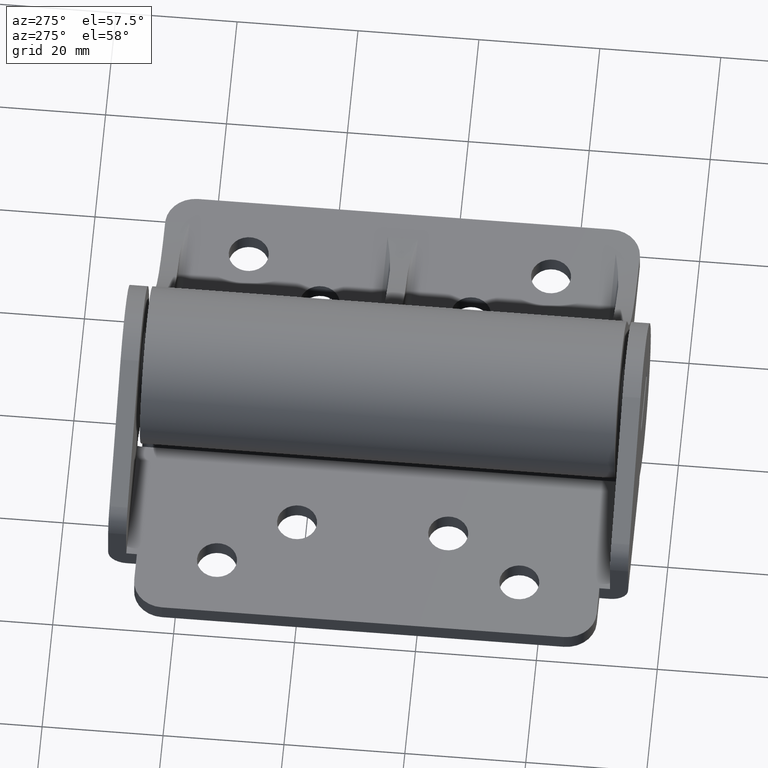
[diagram: clean part render]
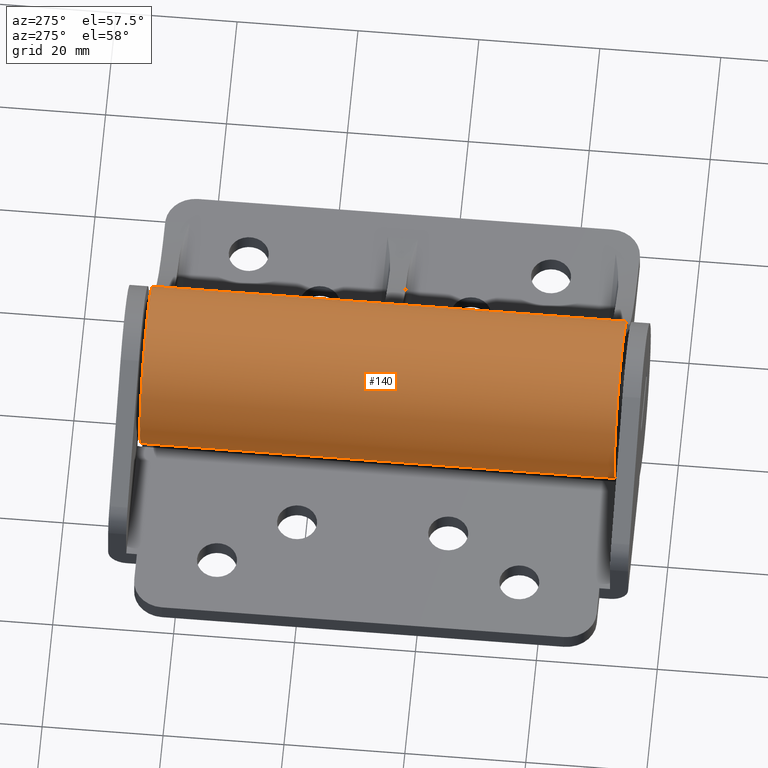
[diagram: same view with one face highlighted and labeled with its STEP entity id]
A machine part, auxiliary view. The second image highlights one B-rep face of the part: STEP entity #140.
In plain terms, the highlighted cylindrical surface (partial cylindrical patch) has radius 13 mm, axis along (0, 1, 0).
Its self-contained STEP definition (entity closure, byte-faithful):
#91 = LINE ( 'NONE', #2711, #1553 ) ;
#140 = ADVANCED_FACE ( 'NONE', ( #2874 ), #472, .T. ) ;
#261 = CARTESIAN_POINT ( 'NONE',  ( 12.08556750290151900, -4.789473680145959200, 82.25000000000000000 ) ) ;
#341 = VERTEX_POINT ( 'NONE', #1724 ) ;
#369 = DIRECTION ( 'NONE',  ( 0.0000000000000000000, 0.0000000000000000000, 1.000000000000000000 ) ) ;
#472 = CYLINDRICAL_SURFACE ( 'NONE', #1137, 13.00000000000000000 ) ;
#489 = ORIENTED_EDGE ( 'NONE', *, *, #1870, .F. ) ;
#521 = EDGE_CURVE ( 'NONE', #3682, #341, #3166, .T. ) ;
#557 = CARTESIAN_POINT ( 'NONE',  ( -8.500000000000000000, 9.836157786453000500, 3.750000000000000000 ) ) ;
#586 = CIRCLE ( 'NONE', #3770, 13.00000000000000000 ) ;
#622 = ORIENTED_EDGE ( 'NONE', *, *, #1363, .T. ) ;
#653 = VERTEX_POINT ( 'NONE', #557 ) ;
#920 = ORIENTED_EDGE ( 'NONE', *, *, #1207, .F. ) ;
#1123 = DIRECTION ( 'NONE',  ( 0.0000000000000000000, 0.0000000000000000000, 1.000000000000000000 ) ) ;
#1137 = AXIS2_PLACEMENT_3D ( 'NONE', #3712, #369, #2310 ) ;
#1207 = EDGE_CURVE ( 'NONE', #653, #341, #2907, .T. ) ;
#1227 = DIRECTION ( 'NONE',  ( -0.0000000000000000000, -0.0000000000000000000, -1.000000000000000000 ) ) ;
#1363 = EDGE_CURVE ( 'NONE', #3273, #3682, #91, .T. ) ;
#1431 = CARTESIAN_POINT ( 'NONE',  ( -8.500000000000000000, 9.836157786453000500, -917.7500000000000000 ) ) ;
#1553 = VECTOR ( 'NONE', #2399, 1000.000000000000000 ) ;
#1724 = CARTESIAN_POINT ( 'NONE',  ( -8.500000000000000000, 9.836157786453000500, 82.25000000000000000 ) ) ;
#1870 = EDGE_CURVE ( 'NONE', #3273, #653, #586, .T. ) ;
#1978 = EDGE_LOOP ( 'NONE', ( #3181, #920, #489, #622 ) ) ;
#2089 = VECTOR ( 'NONE', #1123, 1000.000000000000000 ) ;
#2094 = AXIS2_PLACEMENT_3D ( 'NONE', #3299, #1227, #3737 ) ;
#2310 = DIRECTION ( 'NONE',  ( 1.000000000000000000, 0.0000000000000000000, 0.0000000000000000000 ) ) ;
#2399 = DIRECTION ( 'NONE',  ( 0.0000000000000000000, 0.0000000000000000000, 1.000000000000000000 ) ) ;
#2501 = CARTESIAN_POINT ( 'NONE',  ( 0.0000000000000000000, 0.0000000000000000000, 3.750000000000000000 ) ) ;
#2516 = DIRECTION ( 'NONE',  ( -0.0000000000000000000, -0.0000000000000000000, -1.000000000000000000 ) ) ;
#2528 = DIRECTION ( 'NONE',  ( 1.000000000000000000, 0.0000000000000000000, 0.0000000000000000000 ) ) ;
#2711 = CARTESIAN_POINT ( 'NONE',  ( 12.08556750290151900, -4.789473680145959200, -917.7500000000000000 ) ) ;
#2874 = FACE_OUTER_BOUND ( 'NONE', #1978, .T. ) ;
#2907 = LINE ( 'NONE', #1431, #2089 ) ;
#3125 = CARTESIAN_POINT ( 'NONE',  ( 12.08556750290151900, -4.789473680145959200, 3.750000000000000000 ) ) ;
#3166 = CIRCLE ( 'NONE', #2094, 13.00000000000000000 ) ;
#3181 = ORIENTED_EDGE ( 'NONE', *, *, #521, .T. ) ;
#3273 = VERTEX_POINT ( 'NONE', #3125 ) ;
#3299 = CARTESIAN_POINT ( 'NONE',  ( 0.0000000000000000000, 0.0000000000000000000, 82.25000000000000000 ) ) ;
#3682 = VERTEX_POINT ( 'NONE', #261 ) ;
#3712 = CARTESIAN_POINT ( 'NONE',  ( 0.0000000000000000000, 0.0000000000000000000, -917.7500000000000000 ) ) ;
#3737 = DIRECTION ( 'NONE',  ( 1.000000000000000000, 0.0000000000000000000, 0.0000000000000000000 ) ) ;
#3770 = AXIS2_PLACEMENT_3D ( 'NONE', #2501, #2516, #2528 ) ;